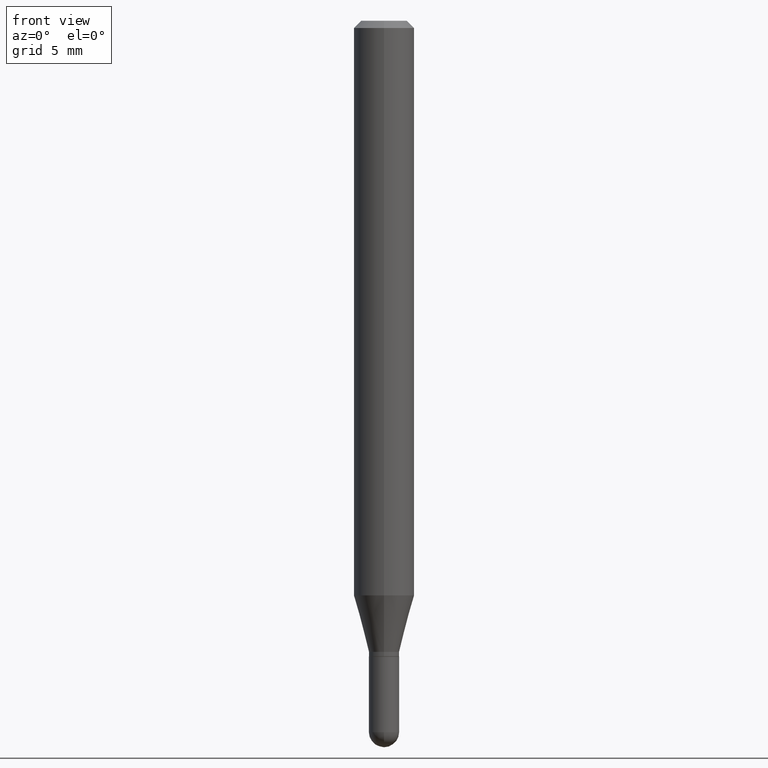
[diagram: clean part render]
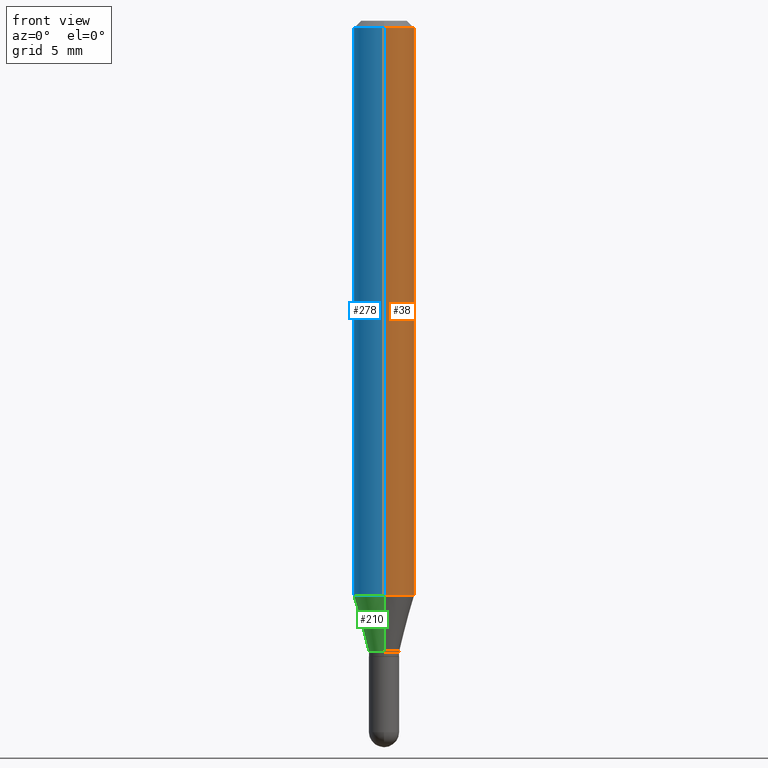
[diagram: same view with three faces highlighted in distinct colors, each labeled with its STEP entity id]
A machine part, front view with three faces highlighted in distinct colors.
Their STEP definitions:

[orange] entity #38 — the highlighted cylindrical surface (edge-blend (fillet) strip) has radius 1.5875 mm, axis along (-0, 0, 1).
#8 = CARTESIAN_POINT ( 'NONE',  ( 4.440892098500914096E-16, 0.06249999999999582279, -1.186373412263473925 ) ) ;
#12 = ORIENTED_EDGE ( 'NONE', *, *, #465, .F. ) ;
#13 = VECTOR ( 'NONE', #492, 39.37007874015748143 ) ;
#20 = DIRECTION ( 'NONE',  ( -6.982962677686265922E-15, -1.000000000000000000, 3.483106191921934765E-15 ) ) ;
#21 = AXIS2_PLACEMENT_3D ( 'NONE', #215, #212, #248 ) ;
#38 = ADVANCED_FACE ( 'NONE', ( #318 ), #402, .T. ) ;
#45 = AXIS2_PLACEMENT_3D ( 'NONE', #222, #337, #20 ) ;
#46 = CARTESIAN_POINT ( 'NONE',  ( 4.440892098500919026E-16, 0.06249999999999997224, -0.01500000000000011914 ) ) ;
#70 = CARTESIAN_POINT ( 'NONE',  ( -4.364351673553628267E-16, -0.06250000000000417721, -1.186373412263473259 ) ) ;
#84 = CARTESIAN_POINT ( 'NONE',  ( 4.440892098500626162E-16, 0.06250000000000001388, -2.182211729911411609E-16 ) ) ;
#93 = EDGE_CURVE ( 'NONE', #430, #450, #366, .T. ) ;
#96 = LINE ( 'NONE', #84, #399 ) ;
#115 = ORIENTED_EDGE ( 'NONE', *, *, #252, .T. ) ;
#126 = CIRCLE ( 'NONE', #21, 0.06250000000000000000 ) ;
#140 = AXIS2_PLACEMENT_3D ( 'NONE', #201, #356, #405 ) ;
#176 = EDGE_CURVE ( 'NONE', #430, #329, #126, .T. ) ;
#201 = CARTESIAN_POINT ( 'NONE',  ( 0.000000000000000000, 0.000000000000000000, 0.000000000000000000 ) ) ;
#205 = ORIENTED_EDGE ( 'NONE', *, *, #176, .T. ) ;
#212 = DIRECTION ( 'NONE',  ( -2.445428703718222053E-29, 3.491538767858258180E-15, 1.000000000000000000 ) ) ;
#215 = CARTESIAN_POINT ( 'NONE',  ( 2.901191595677230162E-29, -4.142268762074205999E-15, -1.186373412263473703 ) ) ;
#222 = CARTESIAN_POINT ( 'NONE',  ( 3.668143055577308942E-31, -5.237308151787352930E-17, -0.01499999999999990230 ) ) ;
#248 = DIRECTION ( 'NONE',  ( -6.982962677686265922E-15, -1.000000000000000000, 4.370956789862821150E-15 ) ) ;
#252 = EDGE_CURVE ( 'NONE', #329, #325, #96, .T. ) ;
#260 = CARTESIAN_POINT ( 'NONE',  ( -4.364351673553916694E-16, -0.06250000000000001388, 2.182211729911411609E-16 ) ) ;
#270 = ORIENTED_EDGE ( 'NONE', *, *, #93, .F. ) ;
#273 = CIRCLE ( 'NONE', #45, 0.06250000000000001388 ) ;
#307 = EDGE_LOOP ( 'NONE', ( #205, #115, #12, #270 ) ) ;
#318 = FACE_OUTER_BOUND ( 'NONE', #307, .T. ) ;
#325 = VERTEX_POINT ( 'NONE', #46 ) ;
#329 = VERTEX_POINT ( 'NONE', #8 ) ;
#337 = DIRECTION ( 'NONE',  ( -2.445428703718222053E-29, 3.491538767858258180E-15, 1.000000000000000000 ) ) ;
#356 = DIRECTION ( 'NONE',  ( -2.445428703718222053E-29, 3.491538767858258180E-15, 1.000000000000000000 ) ) ;
#366 = LINE ( 'NONE', #260, #13 ) ;
#399 = VECTOR ( 'NONE', #451, 39.37007874015748143 ) ;
#402 = CYLINDRICAL_SURFACE ( 'NONE', #140, 0.06250000000000001388 ) ;
#405 = DIRECTION ( 'NONE',  ( -6.982962677686265133E-15, -1.000000000000000000, 3.491538767858257785E-15 ) ) ;
#430 = VERTEX_POINT ( 'NONE', #70 ) ;
#450 = VERTEX_POINT ( 'NONE', #506 ) ;
#451 = DIRECTION ( 'NONE',  ( -2.445428703718222053E-29, 3.491538767858258180E-15, 1.000000000000000000 ) ) ;
#465 = EDGE_CURVE ( 'NONE', #450, #325, #273, .T. ) ;
#492 = DIRECTION ( 'NONE',  ( -2.445428703718222053E-29, 3.491538767858258180E-15, 1.000000000000000000 ) ) ;
#506 = CARTESIAN_POINT ( 'NONE',  ( -4.364351673553913736E-16, -0.06250000000000006939, -0.01499999999999968373 ) ) ;

[blue] entity #278 — the highlighted cylindrical surface (edge-blend (fillet) strip) has radius 1.5875 mm, axis along (-0, 0, 1).
#8 = CARTESIAN_POINT ( 'NONE',  ( 4.440892098500914096E-16, 0.06249999999999582279, -1.186373412263473925 ) ) ;
#13 = VECTOR ( 'NONE', #492, 39.37007874015748143 ) ;
#46 = CARTESIAN_POINT ( 'NONE',  ( 4.440892098500919026E-16, 0.06249999999999997224, -0.01500000000000011914 ) ) ;
#51 = DIRECTION ( 'NONE',  ( -2.445428703718222053E-29, 3.491538767858258180E-15, 1.000000000000000000 ) ) ;
#53 = EDGE_CURVE ( 'NONE', #329, #430, #275, .T. ) ;
#64 = AXIS2_PLACEMENT_3D ( 'NONE', #279, #443, #327 ) ;
#70 = CARTESIAN_POINT ( 'NONE',  ( -4.364351673553628267E-16, -0.06250000000000417721, -1.186373412263473259 ) ) ;
#72 = DIRECTION ( 'NONE',  ( -2.445428703718222053E-29, 3.491538767858258180E-15, 1.000000000000000000 ) ) ;
#76 = ORIENTED_EDGE ( 'NONE', *, *, #511, .F. ) ;
#84 = CARTESIAN_POINT ( 'NONE',  ( 4.440892098500626162E-16, 0.06250000000000001388, -2.182211729911411609E-16 ) ) ;
#93 = EDGE_CURVE ( 'NONE', #430, #450, #366, .T. ) ;
#96 = LINE ( 'NONE', #84, #399 ) ;
#133 = DIRECTION ( 'NONE',  ( -6.982962677686265133E-15, -1.000000000000000000, 3.491538767858257785E-15 ) ) ;
#193 = DIRECTION ( 'NONE',  ( -6.982962677686265922E-15, -1.000000000000000000, 3.483106191921934765E-15 ) ) ;
#231 = ORIENTED_EDGE ( 'NONE', *, *, #252, .F. ) ;
#237 = CARTESIAN_POINT ( 'NONE',  ( 3.668143055577308942E-31, -5.237308151787352930E-17, -0.01499999999999990230 ) ) ;
#250 = CYLINDRICAL_SURFACE ( 'NONE', #354, 0.06250000000000001388 ) ;
#252 = EDGE_CURVE ( 'NONE', #329, #325, #96, .T. ) ;
#258 = AXIS2_PLACEMENT_3D ( 'NONE', #237, #72, #193 ) ;
#260 = CARTESIAN_POINT ( 'NONE',  ( -4.364351673553916694E-16, -0.06250000000000001388, 2.182211729911411609E-16 ) ) ;
#275 = CIRCLE ( 'NONE', #64, 0.06250000000000000000 ) ;
#278 = ADVANCED_FACE ( 'NONE', ( #334 ), #250, .T. ) ;
#279 = CARTESIAN_POINT ( 'NONE',  ( 2.901191595677230162E-29, -4.142268762074205999E-15, -1.186373412263473703 ) ) ;
#282 = ORIENTED_EDGE ( 'NONE', *, *, #93, .T. ) ;
#321 = ORIENTED_EDGE ( 'NONE', *, *, #53, .T. ) ;
#325 = VERTEX_POINT ( 'NONE', #46 ) ;
#327 = DIRECTION ( 'NONE',  ( -6.982962677686265922E-15, -1.000000000000000000, 4.370956789862821150E-15 ) ) ;
#329 = VERTEX_POINT ( 'NONE', #8 ) ;
#334 = FACE_OUTER_BOUND ( 'NONE', #413, .T. ) ;
#354 = AXIS2_PLACEMENT_3D ( 'NONE', #412, #51, #133 ) ;
#366 = LINE ( 'NONE', #260, #13 ) ;
#399 = VECTOR ( 'NONE', #451, 39.37007874015748143 ) ;
#412 = CARTESIAN_POINT ( 'NONE',  ( 0.000000000000000000, 0.000000000000000000, 0.000000000000000000 ) ) ;
#413 = EDGE_LOOP ( 'NONE', ( #231, #321, #282, #76 ) ) ;
#428 = CIRCLE ( 'NONE', #258, 0.06250000000000001388 ) ;
#430 = VERTEX_POINT ( 'NONE', #70 ) ;
#443 = DIRECTION ( 'NONE',  ( -2.445428703718222053E-29, 3.491538767858258180E-15, 1.000000000000000000 ) ) ;
#450 = VERTEX_POINT ( 'NONE', #506 ) ;
#451 = DIRECTION ( 'NONE',  ( -2.445428703718222053E-29, 3.491538767858258180E-15, 1.000000000000000000 ) ) ;
#492 = DIRECTION ( 'NONE',  ( -2.445428703718222053E-29, 3.491538767858258180E-15, 1.000000000000000000 ) ) ;
#506 = CARTESIAN_POINT ( 'NONE',  ( -4.364351673553913736E-16, -0.06250000000000006939, -0.01499999999999968373 ) ) ;
#511 = EDGE_CURVE ( 'NONE', #325, #450, #428, .T. ) ;

[green] entity #210 — the highlighted conical surface has half-angle 15 deg.
#8 = CARTESIAN_POINT ( 'NONE',  ( 4.440892098500914096E-16, 0.06249999999999582279, -1.186373412263473925 ) ) ;
#15 = VECTOR ( 'NONE', #259, 39.37007874015749564 ) ;
#18 = CARTESIAN_POINT ( 'NONE',  ( 3.186393600944843674E-29, -4.549475014519310795E-15, -1.302999999999999936 ) ) ;
#53 = EDGE_CURVE ( 'NONE', #329, #430, #275, .T. ) ;
#57 = ORIENTED_EDGE ( 'NONE', *, *, #53, .F. ) ;
#59 = DIRECTION ( 'NONE',  ( -6.982962677686265922E-15, -1.000000000000000000, 0.000000000000000000 ) ) ;
#64 = AXIS2_PLACEMENT_3D ( 'NONE', #279, #443, #327 ) ;
#68 = ORIENTED_EDGE ( 'NONE', *, *, #459, .T. ) ;
#70 = CARTESIAN_POINT ( 'NONE',  ( -4.364351673553628267E-16, -0.06250000000000417721, -1.186373412263473259 ) ) ;
#91 = CARTESIAN_POINT ( 'NONE',  ( 2.220446049250645389E-16, 0.03124999999999564584, -1.302999999999999936 ) ) ;
#113 = CONICAL_SURFACE ( 'NONE', #294, 0.03125000000000019429, 0.2617993877991501295 ) ;
#114 = EDGE_CURVE ( 'NONE', #179, #329, #285, .T. ) ;
#154 = EDGE_LOOP ( 'NONE', ( #491, #68, #418, #57 ) ) ;
#155 = CIRCLE ( 'NONE', #458, 0.03125000000000019429 ) ;
#179 = VERTEX_POINT ( 'NONE', #363 ) ;
#184 = VERTEX_POINT ( 'NONE', #328 ) ;
#210 = ADVANCED_FACE ( 'NONE', ( #454 ), #113, .T. ) ;
#230 = CARTESIAN_POINT ( 'NONE',  ( 3.186393600944843674E-29, -4.549475014519310795E-15, -1.302999999999999936 ) ) ;
#253 = DIRECTION ( 'NONE',  ( 1.839019923739599526E-15, 0.2588190451025248473, 0.9659258262890673130 ) ) ;
#259 = DIRECTION ( 'NONE',  ( -1.807323732225328562E-15, -0.2588190451025179639, 0.9659258262890689783 ) ) ;
#265 = CARTESIAN_POINT ( 'NONE',  ( -2.182175836776652910E-16, -0.03125000000000474620, -1.302999999999999936 ) ) ;
#275 = CIRCLE ( 'NONE', #64, 0.06250000000000000000 ) ;
#279 = CARTESIAN_POINT ( 'NONE',  ( 2.901191595677230162E-29, -4.142268762074205999E-15, -1.186373412263473703 ) ) ;
#285 = LINE ( 'NONE', #91, #370 ) ;
#294 = AXIS2_PLACEMENT_3D ( 'NONE', #18, #331, #444 ) ;
#327 = DIRECTION ( 'NONE',  ( -6.982962677686265922E-15, -1.000000000000000000, 4.370956789862821150E-15 ) ) ;
#328 = CARTESIAN_POINT ( 'NONE',  ( -2.182175836776652910E-16, -0.03125000000000474620, -1.302999999999999936 ) ) ;
#329 = VERTEX_POINT ( 'NONE', #8 ) ;
#331 = DIRECTION ( 'NONE',  ( -2.445428703718222053E-29, 3.491538767858258180E-15, 1.000000000000000000 ) ) ;
#340 = LINE ( 'NONE', #265, #15 ) ;
#363 = CARTESIAN_POINT ( 'NONE',  ( 3.330669073875781221E-16, 0.03124999999999564237, -1.302999999999999936 ) ) ;
#370 = VECTOR ( 'NONE', #253, 39.37007874015747433 ) ;
#414 = EDGE_CURVE ( 'NONE', #184, #430, #340, .T. ) ;
#418 = ORIENTED_EDGE ( 'NONE', *, *, #414, .T. ) ;
#420 = DIRECTION ( 'NONE',  ( -2.445428703718222053E-29, 3.491538767858258180E-15, 1.000000000000000000 ) ) ;
#430 = VERTEX_POINT ( 'NONE', #70 ) ;
#443 = DIRECTION ( 'NONE',  ( -2.445428703718222053E-29, 3.491538767858258180E-15, 1.000000000000000000 ) ) ;
#444 = DIRECTION ( 'NONE',  ( -6.982962677686265922E-15, -1.000000000000000000, 0.000000000000000000 ) ) ;
#454 = FACE_OUTER_BOUND ( 'NONE', #154, .T. ) ;
#458 = AXIS2_PLACEMENT_3D ( 'NONE', #230, #420, #59 ) ;
#459 = EDGE_CURVE ( 'NONE', #179, #184, #155, .T. ) ;
#491 = ORIENTED_EDGE ( 'NONE', *, *, #114, .F. ) ;